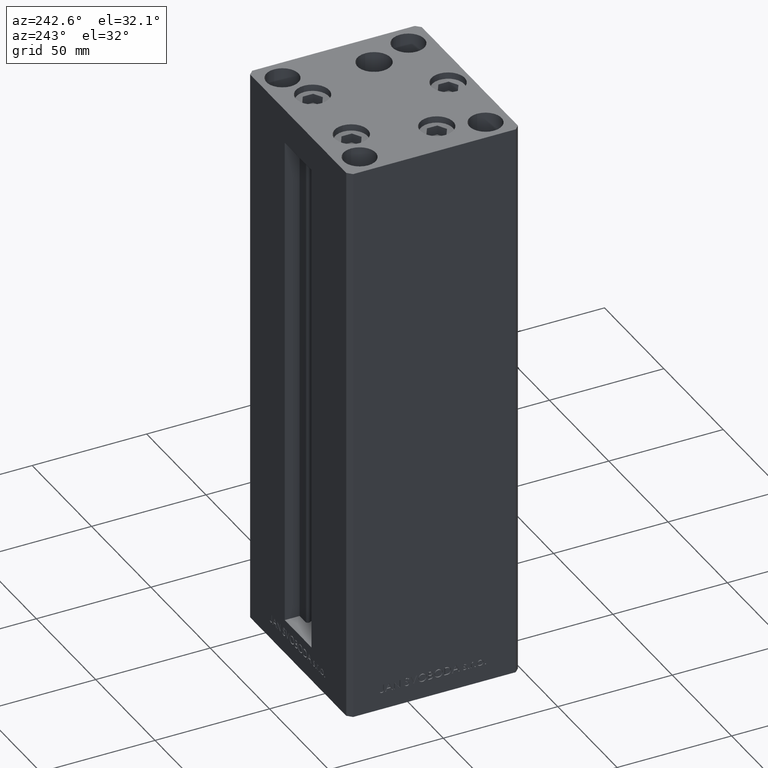
[diagram: clean part render]
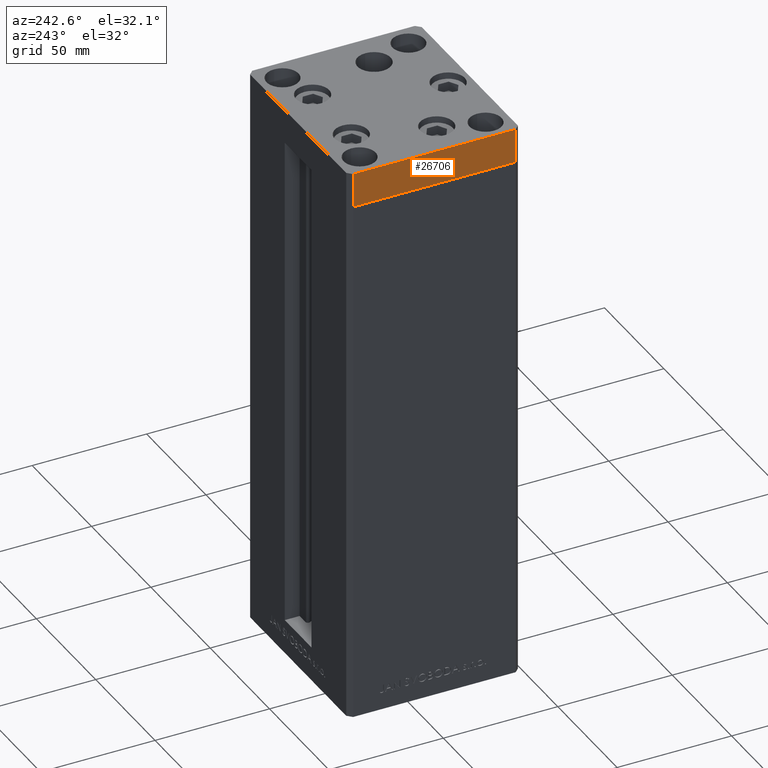
[diagram: same view with one face highlighted and labeled with its STEP entity id]
A machine part, auxiliary view. The second image highlights one B-rep face of the part: STEP entity #26706.
In plain terms, the highlighted planar face has unit normal (-1, -0, 0).
Its self-contained STEP definition (entity closure, byte-faithful):
#1048 = CARTESIAN_POINT ( 'NONE',  ( -42.50000000000000000, -35.50000000000000711, 0.000000000000000000 ) ) ;
#2332 = CARTESIAN_POINT ( 'NONE',  ( -42.50000000000000711, 35.49999999999997158, -15.00000000000000000 ) ) ;
#2874 = CARTESIAN_POINT ( 'NONE',  ( -42.50000000000000711, 35.49999999999997158, 0.000000000000000000 ) ) ;
#6592 = LINE ( 'NONE', #15740, #28268 ) ;
#8676 = VERTEX_POINT ( 'NONE', #1048 ) ;
#9256 = DIRECTION ( 'NONE',  ( 9.773090005503140331E-17, -1.000000000000000000, 0.000000000000000000 ) ) ;
#9445 = DIRECTION ( 'NONE',  ( 0.000000000000000000, 0.000000000000000000, 1.000000000000000000 ) ) ;
#10306 = ORIENTED_EDGE ( 'NONE', *, *, #21155, .T. ) ;
#14335 = EDGE_CURVE ( 'NONE', #25764, #8676, #6592, .T. ) ;
#15740 = CARTESIAN_POINT ( 'NONE',  ( -42.50000000000000711, 35.49999999999997158, 0.000000000000000000 ) ) ;
#18626 = DIRECTION ( 'NONE',  ( 0.000000000000000000, 0.000000000000000000, 1.000000000000000000 ) ) ;
#21155 = EDGE_CURVE ( 'NONE', #36499, #8676, #37458, .T. ) ;
#22675 = DIRECTION ( 'NONE',  ( 9.773090005503140331E-17, -1.000000000000000000, 0.000000000000000000 ) ) ;
#23447 = FACE_OUTER_BOUND ( 'NONE', #41544, .T. ) ;
#23815 = CARTESIAN_POINT ( 'NONE',  ( -42.50000000000000711, 35.49999999999997158, -15.00000000000000000 ) ) ;
#25581 = VERTEX_POINT ( 'NONE', #27394 ) ;
#25764 = VERTEX_POINT ( 'NONE', #2874 ) ;
#26706 = ADVANCED_FACE ( 'NONE', ( #23447 ), #38575, .T. ) ;
#27056 = EDGE_CURVE ( 'NONE', #25581, #25764, #39185, .T. ) ;
#27394 = CARTESIAN_POINT ( 'NONE',  ( -42.50000000000000711, 35.49999999999997158, -15.00000000000000000 ) ) ;
#27723 = ORIENTED_EDGE ( 'NONE', *, *, #27056, .F. ) ;
#28268 = VECTOR ( 'NONE', #22675, 1000.000000000000000 ) ;
#28640 = LINE ( 'NONE', #48205, #32106 ) ;
#30884 = DIRECTION ( 'NONE',  ( -1.000000000000000000, -9.773090005503140331E-17, 0.000000000000000000 ) ) ;
#32106 = VECTOR ( 'NONE', #44732, 1000.000000000000000 ) ;
#36272 = VECTOR ( 'NONE', #18626, 1000.000000000000000 ) ;
#36499 = VERTEX_POINT ( 'NONE', #45305 ) ;
#37458 = LINE ( 'NONE', #48593, #36272 ) ;
#38575 = PLANE ( 'NONE',  #41202 ) ;
#39185 = LINE ( 'NONE', #23815, #39603 ) ;
#39603 = VECTOR ( 'NONE', #9445, 1000.000000000000000 ) ;
#40843 = ORIENTED_EDGE ( 'NONE', *, *, #48756, .T. ) ;
#41202 = AXIS2_PLACEMENT_3D ( 'NONE', #2332, #30884, #9256 ) ;
#41544 = EDGE_LOOP ( 'NONE', ( #43334, #27723, #40843, #10306 ) ) ;
#43334 = ORIENTED_EDGE ( 'NONE', *, *, #14335, .F. ) ;
#44732 = DIRECTION ( 'NONE',  ( 9.773090005503140331E-17, -1.000000000000000000, 0.000000000000000000 ) ) ;
#45305 = CARTESIAN_POINT ( 'NONE',  ( -42.50000000000000000, -35.50000000000000711, -15.00000000000000000 ) ) ;
#48205 = CARTESIAN_POINT ( 'NONE',  ( -42.50000000000000711, 35.49999999999997158, -15.00000000000000000 ) ) ;
#48593 = CARTESIAN_POINT ( 'NONE',  ( -42.50000000000000000, -35.50000000000000711, -15.00000000000000000 ) ) ;
#48756 = EDGE_CURVE ( 'NONE', #25581, #36499, #28640, .T. ) ;